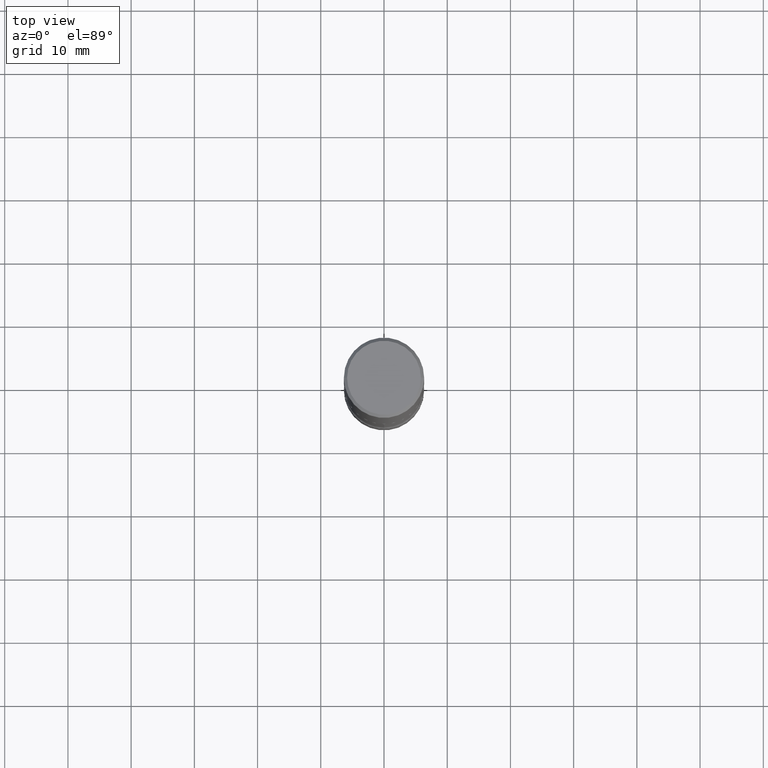
[diagram: clean part render]
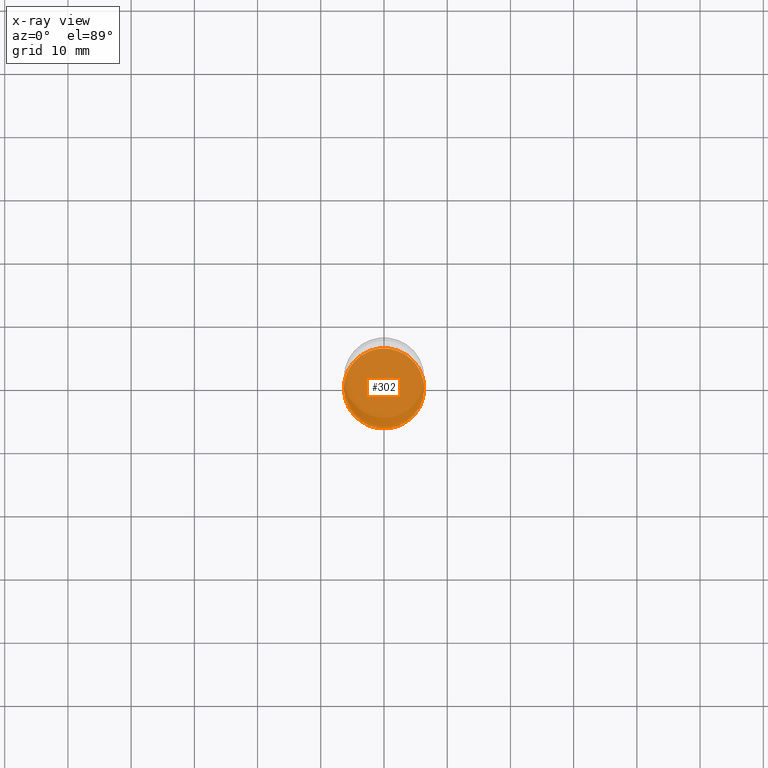
[diagram: x-ray — body ghosted, one internal face saturated and labeled with its STEP entity id]
A machine part, top view, then the same camera in x-ray: the body is ghosted and one INTERNAL B-rep face — a face not visible from any outside direction — is saturated and labeled: STEP entity #302.
In plain terms, the highlighted planar face has unit normal (0, -0, -1).
Its self-contained STEP definition (entity closure, byte-faithful):
#1 = ORIENTED_EDGE ( 'NONE', *, *, #154, .T. ) ;
#2 = DIRECTION ( 'NONE',  ( -1.000000000000000000, 6.982962677686265922E-15, -4.876176775795935793E-29 ) ) ;
#40 = EDGE_LOOP ( 'NONE', ( #221, #1 ) ) ;
#51 = VERTEX_POINT ( 'NONE', #321 ) ;
#76 = AXIS2_PLACEMENT_3D ( 'NONE', #343, #518, #386 ) ;
#79 = EDGE_CURVE ( 'NONE', #179, #51, #336, .T. ) ;
#154 = EDGE_CURVE ( 'NONE', #51, #179, #467, .T. ) ;
#179 = VERTEX_POINT ( 'NONE', #469 ) ;
#181 = FACE_OUTER_BOUND ( 'NONE', #40, .T. ) ;
#221 = ORIENTED_EDGE ( 'NONE', *, *, #79, .T. ) ;
#246 = DIRECTION ( 'NONE',  ( 1.000000000000000000, -6.982962677686269077E-15, 0.000000000000000000 ) ) ;
#247 = DIRECTION ( 'NONE',  ( -2.445468806185136597E-29, 3.491481338843145583E-15, 1.000000000000000000 ) ) ;
#250 = AXIS2_PLACEMENT_3D ( 'NONE', #271, #532, #2 ) ;
#271 = CARTESIAN_POINT ( 'NONE',  ( 9.476191623967404313E-29, -1.352949018801718751E-14, -3.874999999999999556 ) ) ;
#302 = ADVANCED_FACE ( 'NONE', ( #181 ), #493, .F. ) ;
#321 = CARTESIAN_POINT ( 'NONE',  ( -0.2500000000000000555, -1.277439164022855686E-14, -3.874999999999999556 ) ) ;
#333 = CARTESIAN_POINT ( 'NONE',  ( 9.476191623967404313E-29, -1.352949018801718751E-14, -3.874999999999999556 ) ) ;
#336 = CIRCLE ( 'NONE', #76, 0.2500000000000000555 ) ;
#343 = CARTESIAN_POINT ( 'NONE',  ( 9.476191623967404313E-29, -1.352949018801718751E-14, -3.874999999999999556 ) ) ;
#386 = DIRECTION ( 'NONE',  ( 1.000000000000000000, -6.982962677686269077E-15, 0.000000000000000000 ) ) ;
#467 = CIRCLE ( 'NONE', #519, 0.2500000000000000555 ) ;
#469 = CARTESIAN_POINT ( 'NONE',  ( 0.2500000000000000555, -1.527523085743875418E-14, -3.874999999999999556 ) ) ;
#493 = PLANE ( 'NONE',  #250 ) ;
#518 = DIRECTION ( 'NONE',  ( -2.445468806185136597E-29, 3.491481338843145583E-15, 1.000000000000000000 ) ) ;
#519 = AXIS2_PLACEMENT_3D ( 'NONE', #333, #247, #246 ) ;
#532 = DIRECTION ( 'NONE',  ( 2.438088387897960049E-29, -3.491481338843145188E-15, -1.000000000000000000 ) ) ;